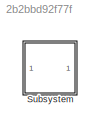
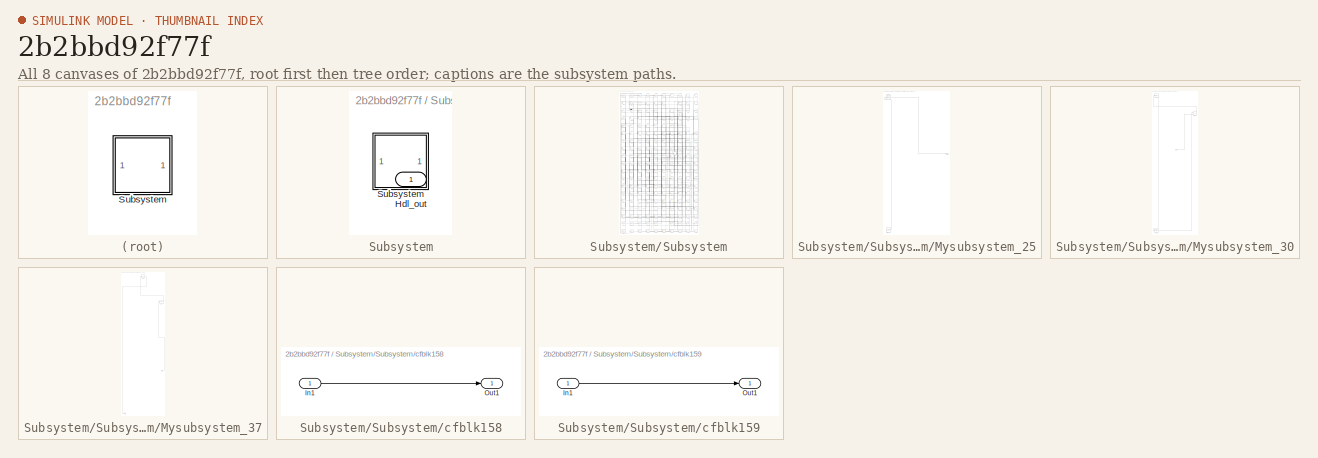
[diagram: thumbnail index - all 8 canvases of the model, root first then tree order]
MODEL slx_2b2bbd92f77f
KIND model
CONFIG AbsTol = auto
CONFIG EnableMultiTasking = off
CONFIG FixedStep = auto
CONFIG MaxStep = auto
CONFIG MinStep = auto
CONFIG RelTol = 1e-3
CONFIG SampleTimeConstraint = Unconstrained
CONFIG SolverName = VariableStepAuto
CONFIG StartTime = 0.0
CONFIG StopTime = 10.0
BLOCK [SubSystem] Subsystem
BLOCK [Outport] Subsystem/Hdl_out
  OutDataTypeStr = uint8
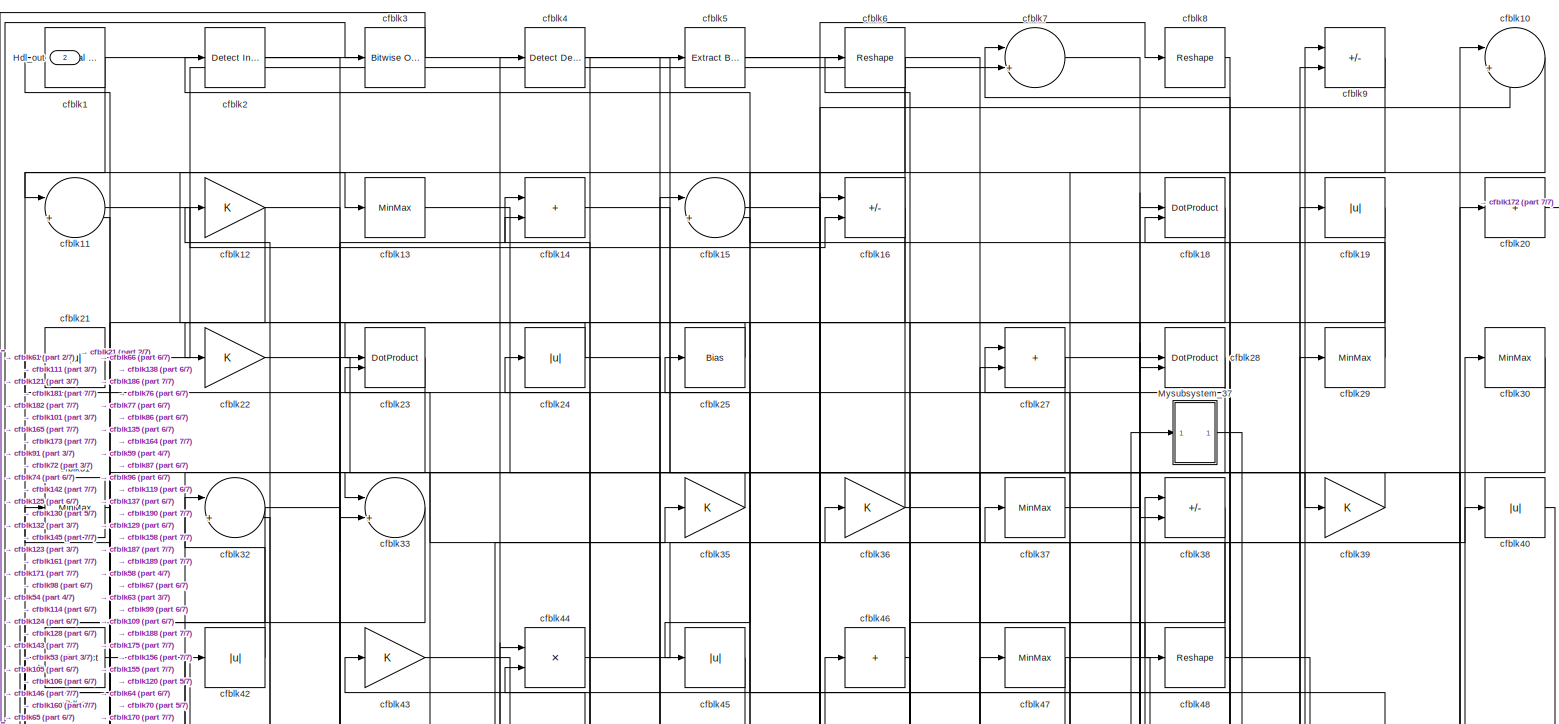
[diagram: Subsystem/Subsystem - part 1/7, full width, top band]
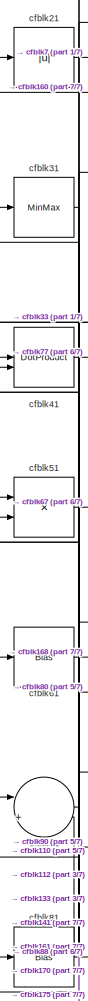
[diagram: Subsystem/Subsystem - part 2/7, top left region]
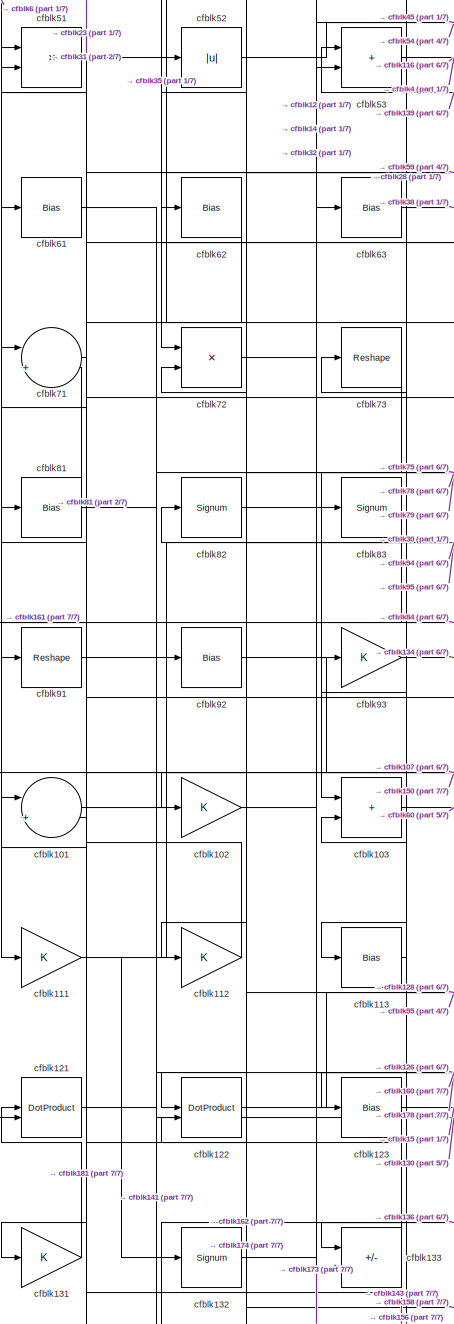
[diagram: Subsystem/Subsystem - part 3/7, middle left region]
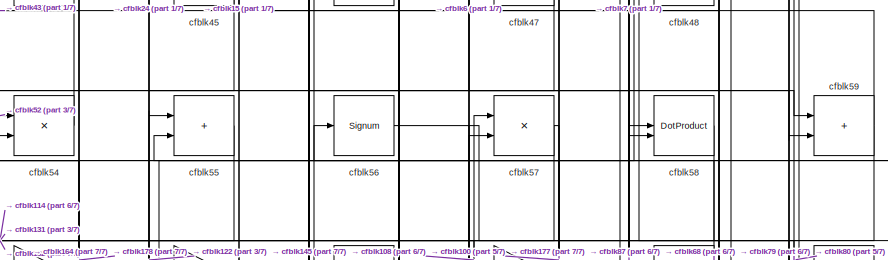
[diagram: Subsystem/Subsystem - part 4/7, top center region]
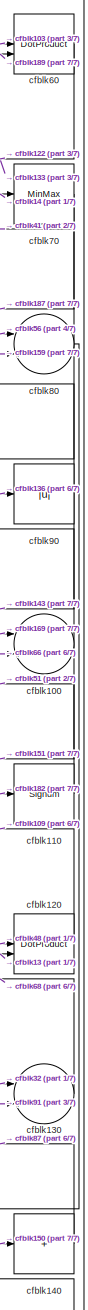
[diagram: Subsystem/Subsystem - part 5/7, middle right region]
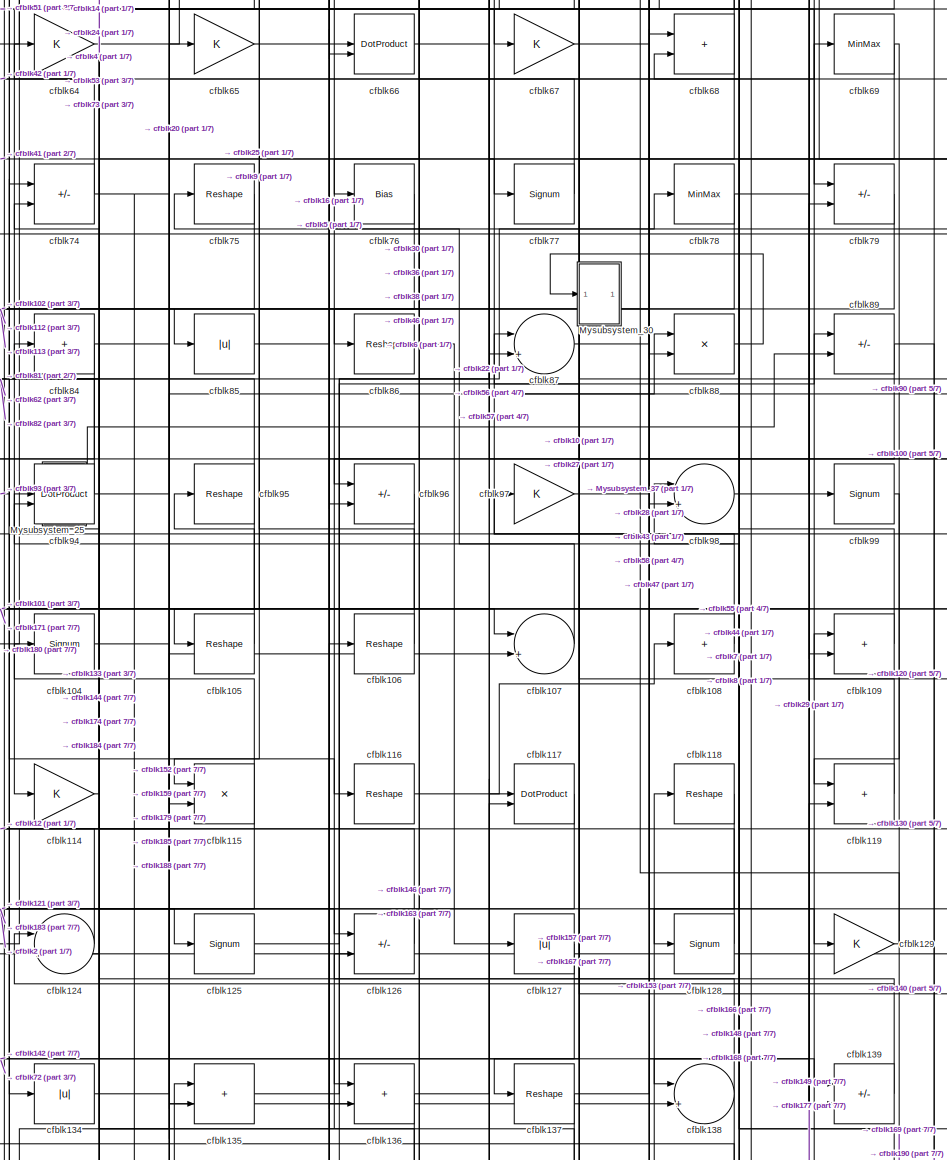
[diagram: Subsystem/Subsystem - part 6/7, central region]
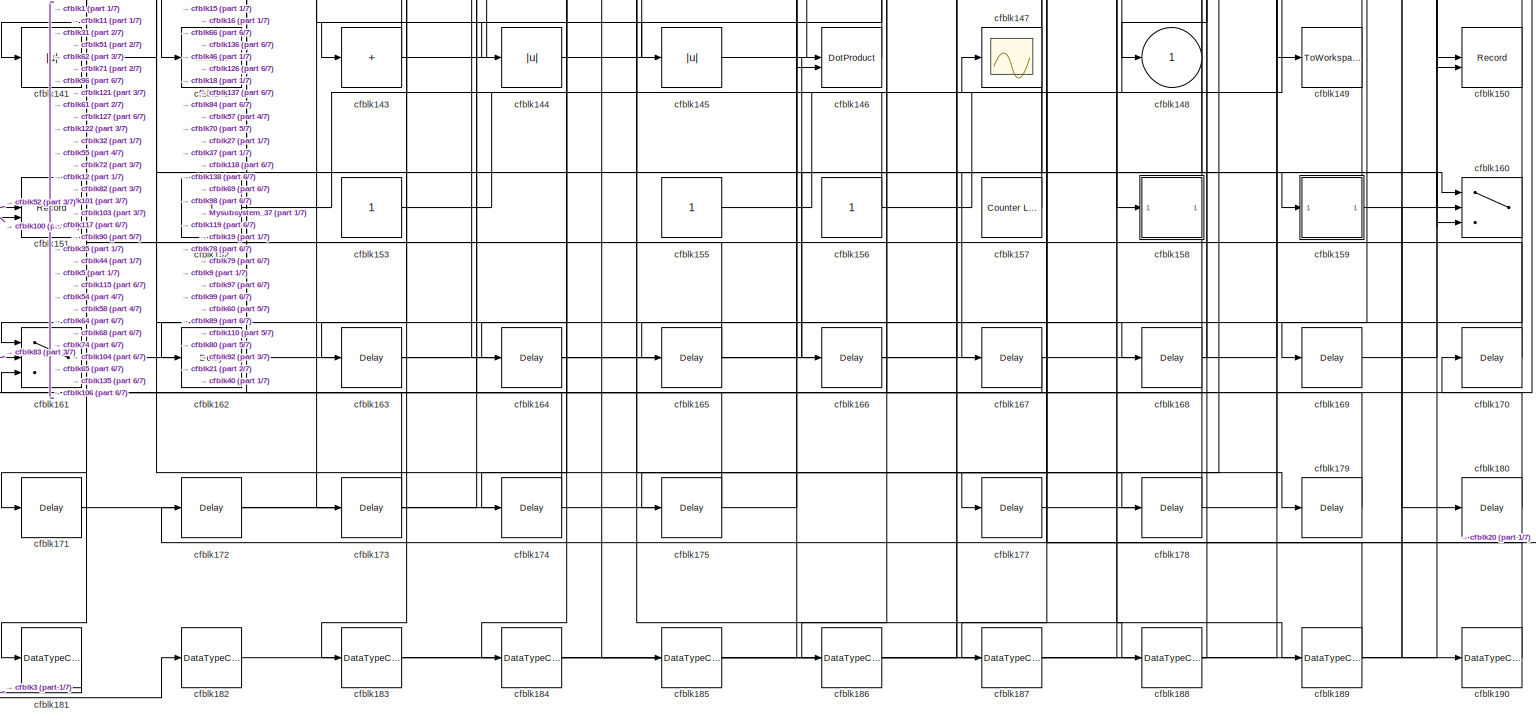
[diagram: Subsystem/Subsystem - part 7/7, full width, bottom band]
BLOCK [SubSystem] Subsystem/Subsystem
BLOCK [Outport] Subsystem/Subsystem/Hdl_out
  OutDataTypeStr = uint8
  Port = 2
BLOCK [SubSystem] Subsystem/Subsystem/Mysubsystem_25
  RTWFcnName = Mysubsystem_25
  RTWFcnNameOpts = User specified
  RTWFileNameOpts = Use function name
  RTWSystemCode = Reusable function
  TreatAsAtomicUnit = on
BLOCK [Outport] Subsystem/Subsystem/Mysubsystem_25/Out1
BLOCK [Reference] Subsystem/Subsystem/Mysubsystem_25/cfblk154  REF=hdlsllib/Sources/Counter
Free-Running
  SourceBlock = hdlsllib/Sources/Counter\nFree-Running
  SourceType = Counter Free-Running
BLOCK [MinMax] Subsystem/Subsystem/Mysubsystem_25/cfblk34
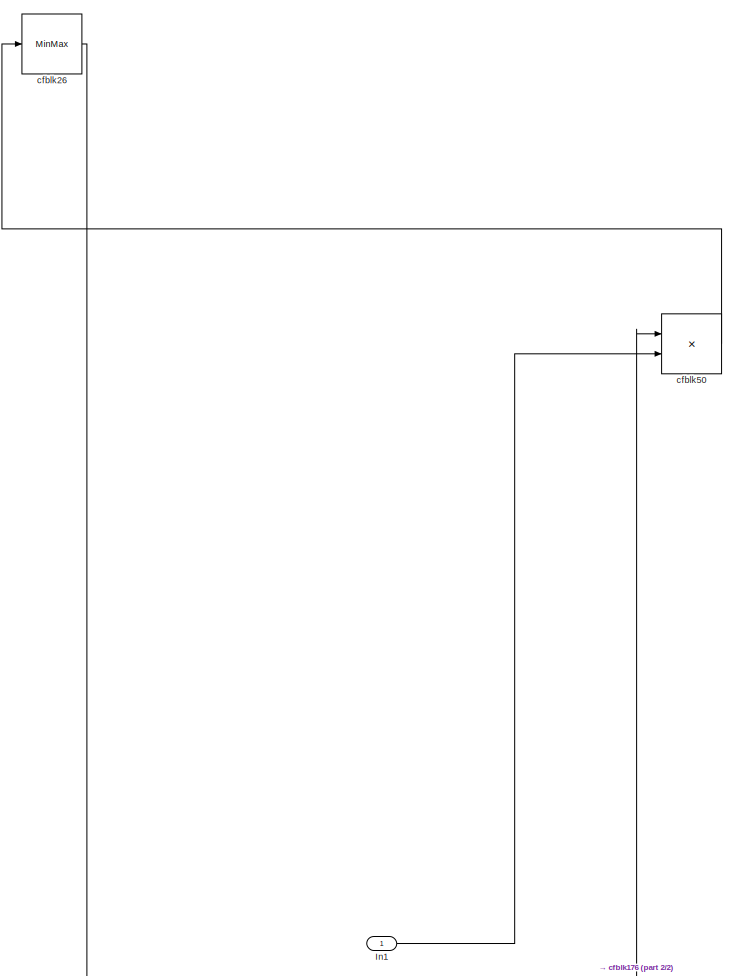
[diagram: Subsystem/Subsystem/Mysubsystem_30 - part 1/2, full width, top band]
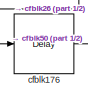
[diagram: Subsystem/Subsystem/Mysubsystem_30 - part 2/2, bottom left region]
BLOCK [SubSystem] Subsystem/Subsystem/Mysubsystem_30
  RTWFcnName = Mysubsystem_30
  RTWFcnNameOpts = User specified
  RTWFileNameOpts = Use function name
  RTWSystemCode = Reusable function
  TreatAsAtomicUnit = on
BLOCK [Inport] Subsystem/Subsystem/Mysubsystem_30/In1
BLOCK [Delay] Subsystem/Subsystem/Mysubsystem_30/cfblk176
  InputPortMap = u0
  SampleTime = 1
BLOCK [MinMax] Subsystem/Subsystem/Mysubsystem_30/cfblk26
BLOCK [Product] Subsystem/Subsystem/Mysubsystem_30/cfblk50
  Inputs = */
  RndMeth = Zero
  SaturateOnIntegerOverflow = on
BLOCK [SubSystem] Subsystem/Subsystem/Mysubsystem_37
  RTWFcnName = Mysubsystem_37
  RTWFcnNameOpts = User specified
  RTWFileNameOpts = Use function name
  RTWSystemCode = Reusable function
  TreatAsAtomicUnit = on
BLOCK [Inport] Subsystem/Subsystem/Mysubsystem_37/In1
BLOCK [Outport] Subsystem/Subsystem/Mysubsystem_37/Out1
BLOCK [Abs] Subsystem/Subsystem/Mysubsystem_37/cfblk17
  SaturateOnIntegerOverflow = off
BLOCK [Bias] Subsystem/Subsystem/Mysubsystem_37/cfblk49
  Bias = 0.0
  SaturateOnIntegerOverflow = off
BLOCK [Reference] Subsystem/Subsystem/cfblk1  REF=hdlsllib/Logic and Bit
Operations/Interval Test
  SourceBlock = hdlsllib/Logic and Bit\nOperations/Interval Test
  SourceType = Interval Test
BLOCK [Sum] Subsystem/Subsystem/cfblk10
  Inputs = |++
  OutDataTypeStr = uint8
BLOCK [Sum] Subsystem/Subsystem/cfblk100
  Inputs = |++
  OutDataTypeStr = uint8
BLOCK [Sum] Subsystem/Subsystem/cfblk101
  Inputs = |++
  OutDataTypeStr = uint8
BLOCK [Gain] Subsystem/Subsystem/cfblk102
  OutDataTypeStr = uint8
BLOCK [Sum] Subsystem/Subsystem/cfblk103
  IconShape = rectangular
  OutDataTypeStr = uint8
BLOCK [Signum] Subsystem/Subsystem/cfblk104
BLOCK [Reshape] Subsystem/Subsystem/cfblk105
BLOCK [Reshape] Subsystem/Subsystem/cfblk106
BLOCK [Sum] Subsystem/Subsystem/cfblk107
  Inputs = |++
  OutDataTypeStr = uint8
BLOCK [Sum] Subsystem/Subsystem/cfblk108
  IconShape = rectangular
  Inputs = +
  OutDataTypeStr = uint8
BLOCK [Sum] Subsystem/Subsystem/cfblk109
  IconShape = rectangular
  OutDataTypeStr = uint8
BLOCK [Sum] Subsystem/Subsystem/cfblk11
  Inputs = |++
  OutDataTypeStr = uint8
BLOCK [Signum] Subsystem/Subsystem/cfblk110
BLOCK [Gain] Subsystem/Subsystem/cfblk111
  OutDataTypeStr = uint8
BLOCK [Gain] Subsystem/Subsystem/cfblk112
  OutDataTypeStr = uint8
BLOCK [Bias] Subsystem/Subsystem/cfblk113
  Bias = 0.0
  SaturateOnIntegerOverflow = off
BLOCK [Gain] Subsystem/Subsystem/cfblk114
  OutDataTypeStr = uint8
BLOCK [Product] Subsystem/Subsystem/cfblk115
  Inputs = */
  OutDataTypeStr = uint8
  RndMeth = Zero
  SaturateOnIntegerOverflow = on
BLOCK [Reshape] Subsystem/Subsystem/cfblk116
BLOCK [DotProduct] Subsystem/Subsystem/cfblk117
  OutDataTypeStr = uint8
BLOCK [Reshape] Subsystem/Subsystem/cfblk118
BLOCK [Sum] Subsystem/Subsystem/cfblk119
  IconShape = rectangular
  OutDataTypeStr = uint8
BLOCK [Gain] Subsystem/Subsystem/cfblk12
  OutDataTypeStr = uint8
BLOCK [DotProduct] Subsystem/Subsystem/cfblk120
  OutDataTypeStr = uint8
BLOCK [DotProduct] Subsystem/Subsystem/cfblk121
  OutDataTypeStr = uint8
BLOCK [DotProduct] Subsystem/Subsystem/cfblk122
  OutDataTypeStr = uint8
BLOCK [Bias] Subsystem/Subsystem/cfblk123
  Bias = 0.0
  SaturateOnIntegerOverflow = off
BLOCK [Sum] Subsystem/Subsystem/cfblk124
  Inputs = |++
  OutDataTypeStr = uint8
BLOCK [Signum] Subsystem/Subsystem/cfblk125
BLOCK [Sum] Subsystem/Subsystem/cfblk126
  IconShape = rectangular
  Inputs = +-
  OutDataTypeStr = uint8
BLOCK [Abs] Subsystem/Subsystem/cfblk127
  OutDataTypeStr = uint8
  SaturateOnIntegerOverflow = off
BLOCK [Signum] Subsystem/Subsystem/cfblk128
BLOCK [Gain] Subsystem/Subsystem/cfblk129
  OutDataTypeStr = uint8
BLOCK [MinMax] Subsystem/Subsystem/cfblk13
  OutDataTypeStr = uint8
BLOCK [Sum] Subsystem/Subsystem/cfblk130
  Inputs = |++
  OutDataTypeStr = uint8
BLOCK [Gain] Subsystem/Subsystem/cfblk131
  OutDataTypeStr = uint8
BLOCK [Signum] Subsystem/Subsystem/cfblk132
BLOCK [Sum] Subsystem/Subsystem/cfblk133
  IconShape = rectangular
  Inputs = +-
  OutDataTypeStr = uint8
BLOCK [Abs] Subsystem/Subsystem/cfblk134
  OutDataTypeStr = uint8
  SaturateOnIntegerOverflow = off
BLOCK [Sum] Subsystem/Subsystem/cfblk135
  IconShape = rectangular
  OutDataTypeStr = uint8
BLOCK [Sum] Subsystem/Subsystem/cfblk136
  IconShape = rectangular
  OutDataTypeStr = uint8
BLOCK [Reshape] Subsystem/Subsystem/cfblk137
BLOCK [Sum] Subsystem/Subsystem/cfblk138
  Inputs = |++
  OutDataTypeStr = uint8
BLOCK [Sum] Subsystem/Subsystem/cfblk139
  IconShape = rectangular
  Inputs = +-
  OutDataTypeStr = uint8
BLOCK [Sum] Subsystem/Subsystem/cfblk14
  IconShape = rectangular
  OutDataTypeStr = uint8
BLOCK [Sum] Subsystem/Subsystem/cfblk140
  IconShape = rectangular
  Inputs = +
  OutDataTypeStr = uint8
BLOCK [Abs] Subsystem/Subsystem/cfblk141
  OutDataTypeStr = uint8
  SaturateOnIntegerOverflow = off
BLOCK [MinMax] Subsystem/Subsystem/cfblk142
  OutDataTypeStr = uint8
BLOCK [Sum] Subsystem/Subsystem/cfblk143
  IconShape = rectangular
  Inputs = +
  OutDataTypeStr = uint8
BLOCK [Abs] Subsystem/Subsystem/cfblk144
  OutDataTypeStr = uint8
  SaturateOnIntegerOverflow = off
BLOCK [Abs] Subsystem/Subsystem/cfblk145
  OutDataTypeStr = uint8
  SaturateOnIntegerOverflow = off
BLOCK [DotProduct] Subsystem/Subsystem/cfblk146
  OutDataTypeStr = uint8
BLOCK [Scope] Subsystem/Subsystem/cfblk147
  Floating = off
  NumInputPorts = 1
  ScopeSpecificationString = Simulink.scopes.TimeScopeBlockCfg('CurrentConfiguration', extmgr.ConfigurationSet(extmgr.Configuration('Core','General UI',true),extmgr.Configuration('Core','Source UI',true),extmgr.Configuration('Sources','WiredSimulink',true,'DataLoggingSaveFormat','Array','DataLoggingLimitDataPoints',true,'DataLoggingDecimation','1'),extmgr.Configuration('Visuals','Time Domain',true,'DisplayPropertyDefaults',st...<+829ch>
BLOCK [Outport] Subsystem/Subsystem/cfblk148
  OutDataTypeStr = uint8
  VectorParamsAs1DForOutWhenUnconnected = off
BLOCK [ToWorkspace] Subsystem/Subsystem/cfblk149
  MaxDataPoints = inf
  SampleTime = -1
  SaveFormat = Timeseries
  VariableName = simout
BLOCK [Sum] Subsystem/Subsystem/cfblk15
  Inputs = |++
  OutDataTypeStr = uint8
BLOCK [Record] Subsystem/Subsystem/cfblk150
  CompatibilityTag = XY
  FileSettingsInternal = {"entries":[{"content":{"excelSettings":{"content":{},"type":"Streamout.ExcelSettings"}},"type":"Streamout.FileSettingStorage","uuid":""}],"packageUris":["http:\/\/schema.mathworks.com\/mf0\/streamout_blocks\/R2020a"],"version":"1.0"}
  Layout = [1 1]
  SignalsInternal = {"entries":[{"content":{"signals":[{"content":{"blockPath":[],"dimensions":[1],"domain":"","lineColor":"#a2142f","plots":[1],"port":1,"signalID":27782,"signalName":"cfblk92"},"type":"RecordBlkView.Signal","uuid":""},{"content":{"blockPath":[],"dimensions":[1],"domain":"","lineColor":"#139fff","plots":[1],"port":2,"signalID":27785,"signalName":"cfblk80"},"type":"RecordBlkView.Signal","uuid":""}]},"...<+142ch>
  VisualizationBindings = {"xyplotplugin":{"info":[{"series":[{"bindingParametersList":[{"parameter":"X-Axis","signalID":27782,"signalName":"cfblk92"},{"parameter":"Y-Axis","signalID":27785,"signalName":"cfblk80"}],"seriesID":25843}],"subplotID":1}]}}
  st = -1
BLOCK [Record] Subsystem/Subsystem/cfblk151
  CompatibilityTag = XY
  FileSettingsInternal = {"entries":[{"content":{"excelSettings":{"content":{},"type":"Streamout.ExcelSettings"}},"type":"Streamout.FileSettingStorage","uuid":""}],"packageUris":["http:\/\/schema.mathworks.com\/mf0\/streamout_blocks\/R2020a"],"version":"1.0"}
  Layout = [1 1]
  SignalsInternal = {"entries":[{"content":{"signals":[{"content":{"blockPath":[],"dimensions":[1],"domain":"","lineColor":"#a2142f","plots":[1],"port":1,"signalID":27790,"signalName":"cfblk158"},"type":"RecordBlkView.Signal","uuid":""},{"content":{"blockPath":[],"dimensions":[1],"domain":"","lineColor":"#139fff","plots":[1],"port":2,"signalID":27793,"signalName":"cfblk100"},"type":"RecordBlkView.Signal","uuid":""}]}...<+144ch>
  VisualizationBindings = {"xyplotplugin":{"info":[{"series":[{"bindingParametersList":[{"parameter":"X-Axis","signalID":27790,"signalName":"cfblk158"},{"parameter":"Y-Axis","signalID":27793,"signalName":"cfblk100"}],"seriesID":14830}],"subplotID":1}]}}
  st = -1
BLOCK [Constant] Subsystem/Subsystem/cfblk152
  OutDataTypeStr = uint8
  SampleTime = -1
BLOCK [Constant] Subsystem/Subsystem/cfblk153
  OutDataTypeStr = uint8
  SampleTime = -1
BLOCK [Constant] Subsystem/Subsystem/cfblk155
  OutDataTypeStr = uint8
  SampleTime = -1
BLOCK [Constant] Subsystem/Subsystem/cfblk156
  OutDataTypeStr = uint8
  SampleTime = -1
BLOCK [Reference] Subsystem/Subsystem/cfblk157  REF=hdlsllib/Sources/Counter
Limited
  SourceBlock = hdlsllib/Sources/Counter\nLimited
  SourceType = Counter Limited
BLOCK [SubSystem] Subsystem/Subsystem/cfblk158
  LibrarySourceBlock = hdlsllib/Ports &\nSubsystems/Subsystem
BLOCK [Inport] Subsystem/Subsystem/cfblk158/In1
BLOCK [Outport] Subsystem/Subsystem/cfblk158/Out1
BLOCK [SubSystem] Subsystem/Subsystem/cfblk159
  LibrarySourceBlock = hdlsllib/Ports &\nSubsystems/Subsystem
BLOCK [Inport] Subsystem/Subsystem/cfblk159/In1
BLOCK [Outport] Subsystem/Subsystem/cfblk159/Out1
BLOCK [Sum] Subsystem/Subsystem/cfblk16
  IconShape = rectangular
  Inputs = +-
  OutDataTypeStr = uint8
BLOCK [Switch] Subsystem/Subsystem/cfblk160
  InputSameDT = off
  OutDataTypeStr = uint8
  SaturateOnIntegerOverflow = off
BLOCK [Switch] Subsystem/Subsystem/cfblk161
  InputSameDT = off
  OutDataTypeStr = uint8
  SaturateOnIntegerOverflow = off
BLOCK [Delay] Subsystem/Subsystem/cfblk162
  InputPortMap = u0
  SampleTime = 1
BLOCK [Delay] Subsystem/Subsystem/cfblk163
  InputPortMap = u0
  SampleTime = 1
BLOCK [Delay] Subsystem/Subsystem/cfblk164
  InputPortMap = u0
  SampleTime = 1
BLOCK [Delay] Subsystem/Subsystem/cfblk165
  InputPortMap = u0
  SampleTime = 1
BLOCK [Delay] Subsystem/Subsystem/cfblk166
  InputPortMap = u0
  SampleTime = 1
BLOCK [Delay] Subsystem/Subsystem/cfblk167
  InputPortMap = u0
  SampleTime = 1
BLOCK [Delay] Subsystem/Subsystem/cfblk168
  InputPortMap = u0
  SampleTime = 1
BLOCK [Delay] Subsystem/Subsystem/cfblk169
  InputPortMap = u0
  SampleTime = 1
BLOCK [Delay] Subsystem/Subsystem/cfblk170
  InputPortMap = u0
  SampleTime = 1
BLOCK [Delay] Subsystem/Subsystem/cfblk171
  InputPortMap = u0
  SampleTime = 1
BLOCK [Delay] Subsystem/Subsystem/cfblk172
  InputPortMap = u0
  SampleTime = 1
BLOCK [Delay] Subsystem/Subsystem/cfblk173
  InputPortMap = u0
  SampleTime = 1
BLOCK [Delay] Subsystem/Subsystem/cfblk174
  InputPortMap = u0
  SampleTime = 1
BLOCK [Delay] Subsystem/Subsystem/cfblk175
  InputPortMap = u0
  SampleTime = 1
BLOCK [Delay] Subsystem/Subsystem/cfblk177
  InputPortMap = u0
  SampleTime = 1
BLOCK [Delay] Subsystem/Subsystem/cfblk178
  InputPortMap = u0
  SampleTime = 1
BLOCK [Delay] Subsystem/Subsystem/cfblk179
  InputPortMap = u0
  SampleTime = 1
BLOCK [DotProduct] Subsystem/Subsystem/cfblk18
  OutDataTypeStr = uint8
BLOCK [Delay] Subsystem/Subsystem/cfblk180
  InputPortMap = u0
  SampleTime = 1
BLOCK [DataTypeConversion] Subsystem/Subsystem/cfblk181
  OutDataTypeStr = uint8
  RndMeth = Floor
  SaturateOnIntegerOverflow = off
BLOCK [DataTypeConversion] Subsystem/Subsystem/cfblk182
  OutDataTypeStr = uint8
  RndMeth = Floor
  SaturateOnIntegerOverflow = off
BLOCK [DataTypeConversion] Subsystem/Subsystem/cfblk183
  OutDataTypeStr = uint8
  RndMeth = Floor
  SaturateOnIntegerOverflow = off
BLOCK [DataTypeConversion] Subsystem/Subsystem/cfblk184
  OutDataTypeStr = uint8
  RndMeth = Floor
  SaturateOnIntegerOverflow = off
BLOCK [DataTypeConversion] Subsystem/Subsystem/cfblk185
  OutDataTypeStr = uint8
  RndMeth = Floor
  SaturateOnIntegerOverflow = off
BLOCK [DataTypeConversion] Subsystem/Subsystem/cfblk186
  OutDataTypeStr = uint8
  RndMeth = Floor
  SaturateOnIntegerOverflow = off
BLOCK [DataTypeConversion] Subsystem/Subsystem/cfblk187
  OutDataTypeStr = uint8
  RndMeth = Floor
  SaturateOnIntegerOverflow = off
BLOCK [DataTypeConversion] Subsystem/Subsystem/cfblk188
  OutDataTypeStr = uint8
  RndMeth = Floor
  SaturateOnIntegerOverflow = off
BLOCK [DataTypeConversion] Subsystem/Subsystem/cfblk189
  OutDataTypeStr = uint8
  RndMeth = Floor
  SaturateOnIntegerOverflow = off
BLOCK [Abs] Subsystem/Subsystem/cfblk19
  OutDataTypeStr = uint8
  SaturateOnIntegerOverflow = off
BLOCK [DataTypeConversion] Subsystem/Subsystem/cfblk190
  OutDataTypeStr = uint8
  RndMeth = Floor
  SaturateOnIntegerOverflow = off
BLOCK [Reference] Subsystem/Subsystem/cfblk2  REF=simulink/Logic and Bit
Operations/Detect
Increase
  LibrarySourceBlock = hdlsllib/Logic and Bit\nOperations/Detect\nIncrease
  SourceBlock = simulink/Logic and Bit\nOperations/Detect\nIncrease
  SourceType = Detect Increase
BLOCK [Sum] Subsystem/Subsystem/cfblk20
  IconShape = rectangular
  Inputs = +
  OutDataTypeStr = uint8
BLOCK [Abs] Subsystem/Subsystem/cfblk21
  OutDataTypeStr = uint8
  SaturateOnIntegerOverflow = off
BLOCK [Gain] Subsystem/Subsystem/cfblk22
  OutDataTypeStr = uint8
BLOCK [DotProduct] Subsystem/Subsystem/cfblk23
  OutDataTypeStr = uint8
BLOCK [Abs] Subsystem/Subsystem/cfblk24
  OutDataTypeStr = uint8
  SaturateOnIntegerOverflow = off
BLOCK [Bias] Subsystem/Subsystem/cfblk25
  Bias = 0.0
  SaturateOnIntegerOverflow = off
BLOCK [Sum] Subsystem/Subsystem/cfblk27
  IconShape = rectangular
  OutDataTypeStr = uint8
BLOCK [DotProduct] Subsystem/Subsystem/cfblk28
  OutDataTypeStr = uint8
BLOCK [MinMax] Subsystem/Subsystem/cfblk29
  OutDataTypeStr = uint8
BLOCK [Reference] Subsystem/Subsystem/cfblk3  REF=simulink/Logic and Bit
Operations/Bitwise
Operator
  LibrarySourceBlock = hdlsllib/Logic and Bit\nOperations/Bitwise\nOperator
  SourceBlock = simulink/Logic and Bit\nOperations/Bitwise\nOperator
  SourceType = Bitwise Operator
BLOCK [MinMax] Subsystem/Subsystem/cfblk30
  OutDataTypeStr = uint8
BLOCK [MinMax] Subsystem/Subsystem/cfblk31
  OutDataTypeStr = uint8
BLOCK [Sum] Subsystem/Subsystem/cfblk32
  Inputs = |++
  OutDataTypeStr = uint8
BLOCK [Sum] Subsystem/Subsystem/cfblk33
  Inputs = |++
  OutDataTypeStr = uint8
BLOCK [Gain] Subsystem/Subsystem/cfblk35
  OutDataTypeStr = uint8
BLOCK [Gain] Subsystem/Subsystem/cfblk36
  OutDataTypeStr = uint8
BLOCK [MinMax] Subsystem/Subsystem/cfblk37
  OutDataTypeStr = uint8
BLOCK [Sum] Subsystem/Subsystem/cfblk38
  IconShape = rectangular
  Inputs = +-
  OutDataTypeStr = uint8
BLOCK [Gain] Subsystem/Subsystem/cfblk39
  OutDataTypeStr = uint8
BLOCK [Reference] Subsystem/Subsystem/cfblk4  REF=simulink/Logic and Bit
Operations/Detect
Decrease
  LibrarySourceBlock = hdlsllib/Logic and Bit\nOperations/Detect\nDecrease
  SourceBlock = simulink/Logic and Bit\nOperations/Detect\nDecrease
  SourceType = Detect Decrease
BLOCK [Abs] Subsystem/Subsystem/cfblk40
  OutDataTypeStr = uint8
  SaturateOnIntegerOverflow = off
BLOCK [DotProduct] Subsystem/Subsystem/cfblk41
  OutDataTypeStr = uint8
BLOCK [Abs] Subsystem/Subsystem/cfblk42
  OutDataTypeStr = uint8
  SaturateOnIntegerOverflow = off
BLOCK [Gain] Subsystem/Subsystem/cfblk43
  OutDataTypeStr = uint8
BLOCK [Product] Subsystem/Subsystem/cfblk44
  Inputs = */
  OutDataTypeStr = uint8
  RndMeth = Zero
  SaturateOnIntegerOverflow = on
BLOCK [Abs] Subsystem/Subsystem/cfblk45
  OutDataTypeStr = uint8
  SaturateOnIntegerOverflow = off
BLOCK [Sum] Subsystem/Subsystem/cfblk46
  IconShape = rectangular
  Inputs = +
  OutDataTypeStr = uint8
BLOCK [MinMax] Subsystem/Subsystem/cfblk47
  OutDataTypeStr = uint8
BLOCK [Reshape] Subsystem/Subsystem/cfblk48
BLOCK [Reference] Subsystem/Subsystem/cfblk5  REF=simulink/Logic and Bit
Operations/Extract Bits
  LibrarySourceBlock = hdlsllib/Logic and Bit\nOperations/Extract Bits
  SourceBlock = simulink/Logic and Bit\nOperations/Extract Bits
  SourceType = Extract Bits
BLOCK [Product] Subsystem/Subsystem/cfblk51
  Inputs = */
  OutDataTypeStr = uint8
  RndMeth = Zero
  SaturateOnIntegerOverflow = on
BLOCK [Abs] Subsystem/Subsystem/cfblk52
  OutDataTypeStr = uint8
  SaturateOnIntegerOverflow = off
BLOCK [Sum] Subsystem/Subsystem/cfblk53
  IconShape = rectangular
  OutDataTypeStr = uint8
BLOCK [Product] Subsystem/Subsystem/cfblk54
  Inputs = */
  OutDataTypeStr = uint8
  RndMeth = Zero
  SaturateOnIntegerOverflow = on
BLOCK [Sum] Subsystem/Subsystem/cfblk55
  IconShape = rectangular
  OutDataTypeStr = uint8
BLOCK [Signum] Subsystem/Subsystem/cfblk56
BLOCK [Product] Subsystem/Subsystem/cfblk57
  Inputs = */
  OutDataTypeStr = uint8
  RndMeth = Zero
  SaturateOnIntegerOverflow = on
BLOCK [DotProduct] Subsystem/Subsystem/cfblk58
  OutDataTypeStr = uint8
BLOCK [Sum] Subsystem/Subsystem/cfblk59
  IconShape = rectangular
  OutDataTypeStr = uint8
BLOCK [Reshape] Subsystem/Subsystem/cfblk6
BLOCK [DotProduct] Subsystem/Subsystem/cfblk60
  OutDataTypeStr = uint8
BLOCK [Bias] Subsystem/Subsystem/cfblk61
  Bias = 0.0
  SaturateOnIntegerOverflow = off
BLOCK [Bias] Subsystem/Subsystem/cfblk62
  Bias = 0.0
  SaturateOnIntegerOverflow = off
BLOCK [Bias] Subsystem/Subsystem/cfblk63
  Bias = 0.0
  SaturateOnIntegerOverflow = off
BLOCK [Gain] Subsystem/Subsystem/cfblk64
  OutDataTypeStr = uint8
BLOCK [Gain] Subsystem/Subsystem/cfblk65
  OutDataTypeStr = uint8
BLOCK [DotProduct] Subsystem/Subsystem/cfblk66
  OutDataTypeStr = uint8
BLOCK [Gain] Subsystem/Subsystem/cfblk67
  OutDataTypeStr = uint8
BLOCK [Sum] Subsystem/Subsystem/cfblk68
  IconShape = rectangular
  OutDataTypeStr = uint8
BLOCK [MinMax] Subsystem/Subsystem/cfblk69
  OutDataTypeStr = uint8
BLOCK [Sum] Subsystem/Subsystem/cfblk7
  Inputs = |++
  OutDataTypeStr = uint8
BLOCK [MinMax] Subsystem/Subsystem/cfblk70
  OutDataTypeStr = uint8
BLOCK [Sum] Subsystem/Subsystem/cfblk71
  Inputs = |++
  OutDataTypeStr = uint8
BLOCK [Product] Subsystem/Subsystem/cfblk72
  Inputs = */
  OutDataTypeStr = uint8
  RndMeth = Zero
  SaturateOnIntegerOverflow = on
BLOCK [Reshape] Subsystem/Subsystem/cfblk73
BLOCK [Sum] Subsystem/Subsystem/cfblk74
  IconShape = rectangular
  Inputs = +-
  OutDataTypeStr = uint8
BLOCK [Reshape] Subsystem/Subsystem/cfblk75
BLOCK [Bias] Subsystem/Subsystem/cfblk76
  Bias = 0.0
  SaturateOnIntegerOverflow = off
BLOCK [Signum] Subsystem/Subsystem/cfblk77
BLOCK [MinMax] Subsystem/Subsystem/cfblk78
  OutDataTypeStr = uint8
BLOCK [Sum] Subsystem/Subsystem/cfblk79
  IconShape = rectangular
  Inputs = +-
  OutDataTypeStr = uint8
BLOCK [Reshape] Subsystem/Subsystem/cfblk8
BLOCK [Sum] Subsystem/Subsystem/cfblk80
  Inputs = |++
  OutDataTypeStr = uint8
BLOCK [Bias] Subsystem/Subsystem/cfblk81
  Bias = 0.0
  SaturateOnIntegerOverflow = off
BLOCK [Signum] Subsystem/Subsystem/cfblk82
BLOCK [Signum] Subsystem/Subsystem/cfblk83
BLOCK [Sum] Subsystem/Subsystem/cfblk84
  IconShape = rectangular
  Inputs = +
  OutDataTypeStr = uint8
BLOCK [Abs] Subsystem/Subsystem/cfblk85
  OutDataTypeStr = uint8
  SaturateOnIntegerOverflow = off
BLOCK [Reshape] Subsystem/Subsystem/cfblk86
BLOCK [Sum] Subsystem/Subsystem/cfblk87
  Inputs = |++
  OutDataTypeStr = uint8
BLOCK [Product] Subsystem/Subsystem/cfblk88
  Inputs = */
  OutDataTypeStr = uint8
  RndMeth = Zero
  SaturateOnIntegerOverflow = on
BLOCK [Sum] Subsystem/Subsystem/cfblk89
  IconShape = rectangular
  Inputs = +-
  OutDataTypeStr = uint8
BLOCK [Sum] Subsystem/Subsystem/cfblk9
  IconShape = rectangular
  Inputs = +-
  OutDataTypeStr = uint8
BLOCK [Abs] Subsystem/Subsystem/cfblk90
  OutDataTypeStr = uint8
  SaturateOnIntegerOverflow = off
BLOCK [Reshape] Subsystem/Subsystem/cfblk91
BLOCK [Bias] Subsystem/Subsystem/cfblk92
  Bias = 0.0
  SaturateOnIntegerOverflow = off
BLOCK [Gain] Subsystem/Subsystem/cfblk93
  OutDataTypeStr = uint8
BLOCK [DotProduct] Subsystem/Subsystem/cfblk94
  OutDataTypeStr = uint8
BLOCK [Reshape] Subsystem/Subsystem/cfblk95
BLOCK [Sum] Subsystem/Subsystem/cfblk96
  IconShape = rectangular
  Inputs = +-
  OutDataTypeStr = uint8
BLOCK [Gain] Subsystem/Subsystem/cfblk97
  OutDataTypeStr = uint8
BLOCK [Sum] Subsystem/Subsystem/cfblk98
  Inputs = |++
  OutDataTypeStr = uint8
BLOCK [Signum] Subsystem/Subsystem/cfblk99
LINE Subsystem/Subsystem/Mysubsystem_25/cfblk154:1 -> Subsystem/Subsystem/Mysubsystem_25/cfblk34:1
LINE Subsystem/Subsystem/Mysubsystem_25/cfblk34:1 -> Subsystem/Subsystem/Mysubsystem_25/Out1:1
LINE Subsystem/Subsystem/Mysubsystem_25:1 -> Subsystem/Subsystem/cfblk89:2
LINE Subsystem/Subsystem/Mysubsystem_30/In1:1 -> Subsystem/Subsystem/Mysubsystem_30/cfblk50:2
LINE Subsystem/Subsystem/Mysubsystem_30/cfblk176:1 -> Subsystem/Subsystem/Mysubsystem_30/cfblk50:1
LINE Subsystem/Subsystem/Mysubsystem_30/cfblk26:1 -> Subsystem/Subsystem/Mysubsystem_30/cfblk176:1
LINE Subsystem/Subsystem/Mysubsystem_30/cfblk50:1 -> Subsystem/Subsystem/Mysubsystem_30/cfblk26:1
LINE Subsystem/Subsystem/Mysubsystem_37/In1:1 -> Subsystem/Subsystem/Mysubsystem_37/cfblk49:1
LINE Subsystem/Subsystem/Mysubsystem_37/cfblk17:1 -> Subsystem/Subsystem/Mysubsystem_37/Out1:1
LINE Subsystem/Subsystem/Mysubsystem_37/cfblk49:1 -> Subsystem/Subsystem/Mysubsystem_37/cfblk17:1
LINE Subsystem/Subsystem/Mysubsystem_37:1 -> Subsystem/Subsystem/cfblk175:1
NET Subsystem/Subsystem/cfblk100:1 -> Subsystem/Subsystem/cfblk151:2, Subsystem/Subsystem/cfblk56:1
NET Subsystem/Subsystem/cfblk101:1 -> Subsystem/Subsystem/cfblk107:1, Subsystem/Subsystem/cfblk160:3
LINE Subsystem/Subsystem/cfblk102:1 -> Subsystem/Subsystem/cfblk83:1
LINE Subsystem/Subsystem/cfblk103:1 -> Subsystem/Subsystem/cfblk60:1
NET Subsystem/Subsystem/cfblk104:1 -> Subsystem/Subsystem/cfblk107:2, Subsystem/Subsystem/cfblk179:1
LINE Subsystem/Subsystem/cfblk105:1 -> Subsystem/Subsystem/cfblk95:1
LINE Subsystem/Subsystem/cfblk106:1 -> Subsystem/Subsystem/cfblk25:1
LINE Subsystem/Subsystem/cfblk107:1 -> Subsystem/Subsystem/cfblk75:1
NET Subsystem/Subsystem/cfblk108:1 -> Subsystem/Subsystem/cfblk57:1, Subsystem/Subsystem/cfblk94:1
NET Subsystem/Subsystem/cfblk109:1 -> Subsystem/Subsystem/cfblk44:2, Subsystem/Subsystem/cfblk7:1
LINE Subsystem/Subsystem/cfblk10:1 -> Subsystem/Subsystem/cfblk137:1
LINE Subsystem/Subsystem/cfblk110:1 -> Subsystem/Subsystem/cfblk51:1
NET Subsystem/Subsystem/cfblk111:1 -> Subsystem/Subsystem/cfblk132:1, Subsystem/Subsystem/cfblk30:1
LINE Subsystem/Subsystem/cfblk112:1 -> Subsystem/Subsystem/cfblk31:1
LINE Subsystem/Subsystem/cfblk113:1 -> Subsystem/Subsystem/cfblk93:1
LINE Subsystem/Subsystem/cfblk114:1 -> Subsystem/Subsystem/cfblk14:1
NET Subsystem/Subsystem/cfblk115:1 -> Subsystem/Subsystem/cfblk135:2, Subsystem/Subsystem/cfblk174:1, Subsystem/Subsystem/cfblk94:2
LINE Subsystem/Subsystem/cfblk116:1 -> Subsystem/Subsystem/cfblk108:1
LINE Subsystem/Subsystem/cfblk117:1 -> Subsystem/Subsystem/cfblk183:1
LINE Subsystem/Subsystem/cfblk118:1 -> Subsystem/Subsystem/cfblk128:1
LINE Subsystem/Subsystem/cfblk119:1 -> Subsystem/Subsystem/cfblk27:1
NET Subsystem/Subsystem/cfblk11:1 -> Subsystem/Subsystem/cfblk13:1, Subsystem/Subsystem/cfblk16:2, Subsystem/Subsystem/cfblk28:2
LINE Subsystem/Subsystem/cfblk120:1 -> Subsystem/Subsystem/cfblk109:1
NET Subsystem/Subsystem/cfblk121:1 -> Subsystem/Subsystem/cfblk126:1, Subsystem/Subsystem/cfblk160:2, Subsystem/Subsystem/cfblk178:1
LINE Subsystem/Subsystem/cfblk122:1 -> Subsystem/Subsystem/cfblk55:1
LINE Subsystem/Subsystem/cfblk123:1 -> Subsystem/Subsystem/cfblk15:1
LINE Subsystem/Subsystem/cfblk124:1 -> Subsystem/Subsystem/cfblk12:1
LINE Subsystem/Subsystem/cfblk125:1 -> Subsystem/Subsystem/cfblk89:1
LINE Subsystem/Subsystem/cfblk126:1 -> Subsystem/Subsystem/cfblk104:1
LINE Subsystem/Subsystem/cfblk127:1 -> Subsystem/Subsystem/cfblk142:1
NET Subsystem/Subsystem/cfblk128:1 -> Subsystem/Subsystem/cfblk24:1, Subsystem/Subsystem/cfblk73:1
LINE Subsystem/Subsystem/cfblk129:1 -> Subsystem/Subsystem/Mysubsystem_37:1
NET Subsystem/Subsystem/cfblk12:1 -> Subsystem/Subsystem/cfblk145:1, Subsystem/Subsystem/cfblk91:1
LINE Subsystem/Subsystem/cfblk130:1 -> Subsystem/Subsystem/cfblk68:2
LINE Subsystem/Subsystem/cfblk131:1 -> Subsystem/Subsystem/cfblk121:1
NET Subsystem/Subsystem/cfblk132:1 -> Subsystem/Subsystem/cfblk14:2, Subsystem/Subsystem/cfblk63:1
LINE Subsystem/Subsystem/cfblk133:1 -> Subsystem/Subsystem/cfblk81:1
LINE Subsystem/Subsystem/cfblk134:1 -> Subsystem/Subsystem/cfblk69:1
LINE Subsystem/Subsystem/cfblk135:1 -> Subsystem/Subsystem/cfblk47:1
NET Subsystem/Subsystem/cfblk136:1 -> Subsystem/Subsystem/cfblk163:1, Subsystem/Subsystem/cfblk90:1
NET Subsystem/Subsystem/cfblk137:1 -> Subsystem/Subsystem/cfblk139:2, Subsystem/Subsystem/cfblk167:1
NET Subsystem/Subsystem/cfblk138:1 -> Subsystem/Subsystem/cfblk166:1, Subsystem/Subsystem/cfblk36:1
NET Subsystem/Subsystem/cfblk139:1 -> Subsystem/Subsystem/cfblk124:1, Subsystem/Subsystem/cfblk53:1
LINE Subsystem/Subsystem/cfblk13:1 -> Subsystem/Subsystem/cfblk120:2
LINE Subsystem/Subsystem/cfblk140:1 -> Subsystem/Subsystem/cfblk87:1
LINE Subsystem/Subsystem/cfblk141:1 -> Subsystem/Subsystem/cfblk92:1
LINE Subsystem/Subsystem/cfblk142:1 -> Subsystem/Subsystem/cfblk32:2
NET Subsystem/Subsystem/cfblk143:1 -> Subsystem/Subsystem/cfblk101:1, Subsystem/Subsystem/cfblk5:1
NET Subsystem/Subsystem/cfblk144:1 -> Subsystem/Subsystem/cfblk135:1, Subsystem/Subsystem/cfblk64:1
LINE Subsystem/Subsystem/cfblk145:1 -> Subsystem/Subsystem/cfblk57:2
NET Subsystem/Subsystem/cfblk146:1 -> Subsystem/Subsystem/cfblk46:1, Subsystem/Subsystem/cfblk74:2
LINE Subsystem/Subsystem/cfblk14:1 -> Subsystem/Subsystem/cfblk70:1
LINE Subsystem/Subsystem/cfblk152:1 -> Subsystem/Subsystem/cfblk65:1
LINE Subsystem/Subsystem/cfblk153:1 -> Subsystem/Subsystem/cfblk118:1
LINE Subsystem/Subsystem/cfblk155:1 -> Subsystem/Subsystem/cfblk9:1
NET Subsystem/Subsystem/cfblk156:1 -> Subsystem/Subsystem/cfblk103:2, Subsystem/Subsystem/cfblk19:1
LINE Subsystem/Subsystem/cfblk157:1 -> Subsystem/Subsystem/cfblk84:1
LINE Subsystem/Subsystem/cfblk158/In1:1 -> Subsystem/Subsystem/cfblk158/Out1:1
NET Subsystem/Subsystem/cfblk158:1 -> Subsystem/Subsystem/cfblk151:1, Subsystem/Subsystem/cfblk52:1
LINE Subsystem/Subsystem/cfblk159/In1:1 -> Subsystem/Subsystem/cfblk159/Out1:1
NET Subsystem/Subsystem/cfblk159:1 -> Subsystem/Subsystem/cfblk180:1, Subsystem/Subsystem/cfblk80:2, Subsystem/Subsystem/cfblk97:1
LINE Subsystem/Subsystem/cfblk15:1 -> Subsystem/Subsystem/cfblk160:1
NET Subsystem/Subsystem/cfblk160:1 -> Subsystem/Subsystem/cfblk165:1, Subsystem/Subsystem/cfblk21:1
NET Subsystem/Subsystem/cfblk161:1 -> Subsystem/Subsystem/cfblk146:1, Subsystem/Subsystem/cfblk35:1
LINE Subsystem/Subsystem/cfblk162:1 -> Subsystem/Subsystem/cfblk122:2
LINE Subsystem/Subsystem/cfblk163:1 -> Subsystem/Subsystem/cfblk66:1
LINE Subsystem/Subsystem/cfblk164:1 -> Subsystem/Subsystem/cfblk27:2
LINE Subsystem/Subsystem/cfblk165:1 -> Subsystem/Subsystem/cfblk11:2
LINE Subsystem/Subsystem/cfblk166:1 -> Subsystem/Subsystem/cfblk79:2
LINE Subsystem/Subsystem/cfblk167:1 -> Subsystem/Subsystem/cfblk161:3
LINE Subsystem/Subsystem/cfblk168:1 -> Subsystem/Subsystem/cfblk98:1
LINE Subsystem/Subsystem/cfblk169:1 -> Subsystem/Subsystem/cfblk100:1
LINE Subsystem/Subsystem/cfblk16:1 -> Subsystem/Subsystem/cfblk66:2
LINE Subsystem/Subsystem/cfblk170:1 -> Subsystem/Subsystem/cfblk71:1
LINE Subsystem/Subsystem/cfblk171:1 -> Subsystem/Subsystem/cfblk44:1
LINE Subsystem/Subsystem/cfblk172:1 -> Subsystem/Subsystem/cfblk16:1
LINE Subsystem/Subsystem/cfblk173:1 -> Subsystem/Subsystem/cfblk1:1
LINE Subsystem/Subsystem/cfblk174:1 -> Subsystem/Subsystem/cfblk72:2
LINE Subsystem/Subsystem/cfblk175:1 -> Subsystem/Subsystem/cfblk51:2
LINE Subsystem/Subsystem/cfblk177:1 -> Subsystem/Subsystem/cfblk119:2
LINE Subsystem/Subsystem/cfblk178:1 -> Subsystem/Subsystem/cfblk54:2
LINE Subsystem/Subsystem/cfblk179:1 -> Subsystem/Subsystem/cfblk126:2
LINE Subsystem/Subsystem/cfblk180:1 -> Subsystem/Subsystem/cfblk74:1
LINE Subsystem/Subsystem/cfblk181:1 -> Subsystem/Subsystem/cfblk3:1
LINE Subsystem/Subsystem/cfblk182:1 -> Subsystem/Subsystem/cfblk110:1
LINE Subsystem/Subsystem/cfblk183:1 -> Subsystem/Subsystem/cfblk106:1
LINE Subsystem/Subsystem/cfblk184:1 -> Subsystem/Subsystem/cfblk117:1
LINE Subsystem/Subsystem/cfblk185:1 -> Subsystem/Subsystem/cfblk117:2
LINE Subsystem/Subsystem/cfblk186:1 -> Subsystem/Subsystem/cfblk9:2
LINE Subsystem/Subsystem/cfblk187:1 -> Subsystem/Subsystem/cfblk18:1
LINE Subsystem/Subsystem/cfblk188:1 -> Subsystem/Subsystem/cfblk18:2
NET Subsystem/Subsystem/cfblk189:1 -> Subsystem/Subsystem/cfblk147:1, Subsystem/Subsystem/cfblk60:2
LINE Subsystem/Subsystem/cfblk18:1 -> Subsystem/Subsystem/cfblk186:1
LINE Subsystem/Subsystem/cfblk190:1 -> Subsystem/Subsystem/cfblk37:1
LINE Subsystem/Subsystem/cfblk19:1 -> Subsystem/Subsystem/cfblk45:1
LINE Subsystem/Subsystem/cfblk1:1 -> Subsystem/Subsystem/cfblk11:1
LINE Subsystem/Subsystem/cfblk20:1 -> Subsystem/Subsystem/cfblk172:1
LINE Subsystem/Subsystem/cfblk21:1 -> Subsystem/Subsystem/cfblk7:2
NET Subsystem/Subsystem/cfblk22:1 -> Subsystem/Subsystem/cfblk33:2, Subsystem/Subsystem/cfblk87:2
LINE Subsystem/Subsystem/cfblk23:1 -> Subsystem/Subsystem/cfblk101:2
NET Subsystem/Subsystem/cfblk24:1 -> Subsystem/Subsystem/cfblk138:2, Subsystem/Subsystem/cfblk23:1, Subsystem/Subsystem/cfblk59:1
LINE Subsystem/Subsystem/cfblk25:1 -> Subsystem/Subsystem/cfblk22:1
NET Subsystem/Subsystem/cfblk27:1 -> Subsystem/Subsystem/cfblk146:2, Subsystem/Subsystem/cfblk158:1
LINE Subsystem/Subsystem/cfblk28:1 -> Subsystem/Subsystem/cfblk123:1
LINE Subsystem/Subsystem/cfblk29:1 -> Subsystem/Subsystem/cfblk2:1
LINE Subsystem/Subsystem/cfblk2:1 -> Subsystem/Subsystem/cfblk125:1
LINE Subsystem/Subsystem/cfblk30:1 -> Subsystem/Subsystem/cfblk96:1
LINE Subsystem/Subsystem/cfblk31:1 -> Subsystem/Subsystem/cfblk141:1
NET Subsystem/Subsystem/cfblk32:1 -> Subsystem/Subsystem/cfblk121:2, Subsystem/Subsystem/cfblk130:1
LINE Subsystem/Subsystem/cfblk33:1 -> Subsystem/Subsystem/cfblk61:1
LINE Subsystem/Subsystem/cfblk35:1 -> Subsystem/Subsystem/cfblk72:1
NET Subsystem/Subsystem/cfblk36:1 -> Subsystem/Subsystem/Hdl_out:1, Subsystem/Subsystem/cfblk48:1
LINE Subsystem/Subsystem/cfblk37:1 -> Subsystem/Subsystem/cfblk189:1
LINE Subsystem/Subsystem/cfblk38:1 -> Subsystem/Subsystem/cfblk76:1
LINE Subsystem/Subsystem/cfblk39:1 -> Subsystem/Subsystem/cfblk33:1
LINE Subsystem/Subsystem/cfblk3:1 -> Subsystem/Subsystem/cfblk182:1
LINE Subsystem/Subsystem/cfblk40:1 -> Subsystem/Subsystem/cfblk170:1
LINE Subsystem/Subsystem/cfblk41:1 -> Subsystem/Subsystem/cfblk77:1
LINE Subsystem/Subsystem/cfblk42:1 -> Subsystem/Subsystem/cfblk32:1
LINE Subsystem/Subsystem/cfblk43:1 -> Subsystem/Subsystem/cfblk98:2
LINE Subsystem/Subsystem/cfblk44:1 -> Subsystem/Subsystem/cfblk10:1
LINE Subsystem/Subsystem/cfblk45:1 -> Subsystem/Subsystem/cfblk53:2
LINE Subsystem/Subsystem/cfblk46:1 -> Subsystem/Subsystem/cfblk86:1
NET Subsystem/Subsystem/cfblk47:1 -> Subsystem/Subsystem/cfblk40:1, Subsystem/Subsystem/cfblk96:2, Subsystem/Subsystem/cfblk99:1
NET Subsystem/Subsystem/cfblk48:1 -> Subsystem/Subsystem/cfblk120:1, Subsystem/Subsystem/cfblk23:2
NET Subsystem/Subsystem/cfblk4:1 -> Subsystem/Subsystem/cfblk124:2, Subsystem/Subsystem/cfblk39:1
LINE Subsystem/Subsystem/cfblk51:1 -> Subsystem/Subsystem/cfblk67:1
LINE Subsystem/Subsystem/cfblk52:1 -> Subsystem/Subsystem/cfblk54:1
NET Subsystem/Subsystem/cfblk53:1 -> Subsystem/Subsystem/cfblk116:1, Subsystem/Subsystem/cfblk4:1
LINE Subsystem/Subsystem/cfblk54:1 -> Subsystem/Subsystem/cfblk43:1
LINE Subsystem/Subsystem/cfblk55:1 -> Subsystem/Subsystem/cfblk162:1
NET Subsystem/Subsystem/cfblk56:1 -> Subsystem/Subsystem/cfblk79:1, Subsystem/Subsystem/cfblk80:1
NET Subsystem/Subsystem/cfblk57:1 -> Subsystem/Subsystem/cfblk114:1, Subsystem/Subsystem/cfblk177:1
LINE Subsystem/Subsystem/cfblk58:1 -> Subsystem/Subsystem/cfblk164:1
NET Subsystem/Subsystem/cfblk59:1 -> Subsystem/Subsystem/cfblk131:1, Subsystem/Subsystem/cfblk15:2
NET Subsystem/Subsystem/cfblk5:1 -> Subsystem/Subsystem/cfblk109:2, Subsystem/Subsystem/cfblk8:1
NET Subsystem/Subsystem/cfblk60:1 -> Subsystem/Subsystem/cfblk122:1, Subsystem/Subsystem/cfblk133:1
LINE Subsystem/Subsystem/cfblk61:1 -> Subsystem/Subsystem/cfblk168:1
LINE Subsystem/Subsystem/cfblk62:1 -> Subsystem/Subsystem/cfblk181:1
LINE Subsystem/Subsystem/cfblk63:1 -> Subsystem/Subsystem/cfblk38:1
LINE Subsystem/Subsystem/cfblk64:1 -> Subsystem/Subsystem/cfblk20:1
LINE Subsystem/Subsystem/cfblk65:1 -> Subsystem/Subsystem/cfblk10:2
LINE Subsystem/Subsystem/cfblk66:1 -> Subsystem/Subsystem/cfblk100:2
NET Subsystem/Subsystem/cfblk67:1 -> Subsystem/Subsystem/cfblk129:1, Subsystem/Subsystem/cfblk28:1
NET Subsystem/Subsystem/cfblk68:1 -> Subsystem/Subsystem/cfblk144:1, Subsystem/Subsystem/cfblk55:2
NET Subsystem/Subsystem/cfblk69:1 -> Subsystem/Subsystem/cfblk119:1, Subsystem/Subsystem/cfblk148:1
NET Subsystem/Subsystem/cfblk6:1 -> Subsystem/Subsystem/cfblk111:1, Subsystem/Subsystem/cfblk38:2, Subsystem/Subsystem/cfblk59:2
LINE Subsystem/Subsystem/cfblk70:1 -> Subsystem/Subsystem/cfblk187:1
LINE Subsystem/Subsystem/cfblk71:1 -> Subsystem/Subsystem/cfblk161:1
LINE Subsystem/Subsystem/cfblk72:1 -> Subsystem/Subsystem/cfblk136:1
LINE Subsystem/Subsystem/cfblk73:1 -> Subsystem/Subsystem/cfblk103:1
NET Subsystem/Subsystem/cfblk74:1 -> Subsystem/Subsystem/cfblk159:1, Subsystem/Subsystem/cfblk185:1, Subsystem/Subsystem/cfblk42:1
LINE Subsystem/Subsystem/cfblk75:1 -> Subsystem/Subsystem/cfblk112:1
LINE Subsystem/Subsystem/cfblk76:1 -> Subsystem/Subsystem/cfblk115:1
LINE Subsystem/Subsystem/cfblk77:1 -> Subsystem/Subsystem/cfblk6:1
NET Subsystem/Subsystem/cfblk78:1 -> Subsystem/Subsystem/cfblk102:1, Subsystem/Subsystem/cfblk149:1
NET Subsystem/Subsystem/cfblk79:1 -> Subsystem/Subsystem/cfblk113:1, Subsystem/Subsystem/cfblk85:1
LINE Subsystem/Subsystem/cfblk7:1 -> Subsystem/Subsystem/cfblk58:2
NET Subsystem/Subsystem/cfblk80:1 -> Subsystem/Subsystem/cfblk140:1, Subsystem/Subsystem/cfblk150:2, Subsystem/Subsystem/cfblk41:1
NET Subsystem/Subsystem/cfblk81:1 -> Subsystem/Subsystem/cfblk71:2, Subsystem/Subsystem/cfblk88:2
LINE Subsystem/Subsystem/cfblk82:1 -> Subsystem/Subsystem/cfblk173:1
LINE Subsystem/Subsystem/cfblk83:1 -> Subsystem/Subsystem/cfblk161:2
NET Subsystem/Subsystem/cfblk84:1 -> Subsystem/Subsystem/cfblk133:2, Subsystem/Subsystem/cfblk184:1, Subsystem/Subsystem/cfblk188:1
NET Subsystem/Subsystem/cfblk85:1 -> Subsystem/Subsystem/cfblk139:1, Subsystem/Subsystem/cfblk78:1
LINE Subsystem/Subsystem/cfblk86:1 -> Subsystem/Subsystem/cfblk127:1
LINE Subsystem/Subsystem/cfblk87:1 -> Subsystem/Subsystem/cfblk58:1
LINE Subsystem/Subsystem/cfblk88:1 -> Subsystem/Subsystem/Mysubsystem_30:1
NET Subsystem/Subsystem/cfblk89:1 -> Subsystem/Subsystem/cfblk136:2, Subsystem/Subsystem/cfblk190:1
LINE Subsystem/Subsystem/cfblk8:1 -> Subsystem/Subsystem/cfblk138:1
NET Subsystem/Subsystem/cfblk90:1 -> Subsystem/Subsystem/cfblk143:1, Subsystem/Subsystem/cfblk41:2
LINE Subsystem/Subsystem/cfblk91:1 -> Subsystem/Subsystem/cfblk130:2
LINE Subsystem/Subsystem/cfblk92:1 -> Subsystem/Subsystem/cfblk150:1
LINE Subsystem/Subsystem/cfblk93:1 -> Subsystem/Subsystem/cfblk134:1
NET Subsystem/Subsystem/cfblk94:1 -> Subsystem/Subsystem/cfblk62:1, Subsystem/Subsystem/cfblk88:1
NET Subsystem/Subsystem/cfblk95:1 -> Subsystem/Subsystem/cfblk115:2, Subsystem/Subsystem/cfblk82:1
LINE Subsystem/Subsystem/cfblk96:1 -> Subsystem/Subsystem/cfblk171:1
LINE Subsystem/Subsystem/cfblk97:1 -> Subsystem/Subsystem/cfblk68:1
LINE Subsystem/Subsystem/cfblk98:1 -> Subsystem/Subsystem/cfblk29:1
LINE Subsystem/Subsystem/cfblk99:1 -> Subsystem/Subsystem/cfblk169:1
LINE Subsystem/Subsystem/cfblk9:1 -> Subsystem/Subsystem/cfblk105:1
note: NET lines group one-source signal fan-out (src -> all destinations, sorted); 1:1 wires keep LINE
